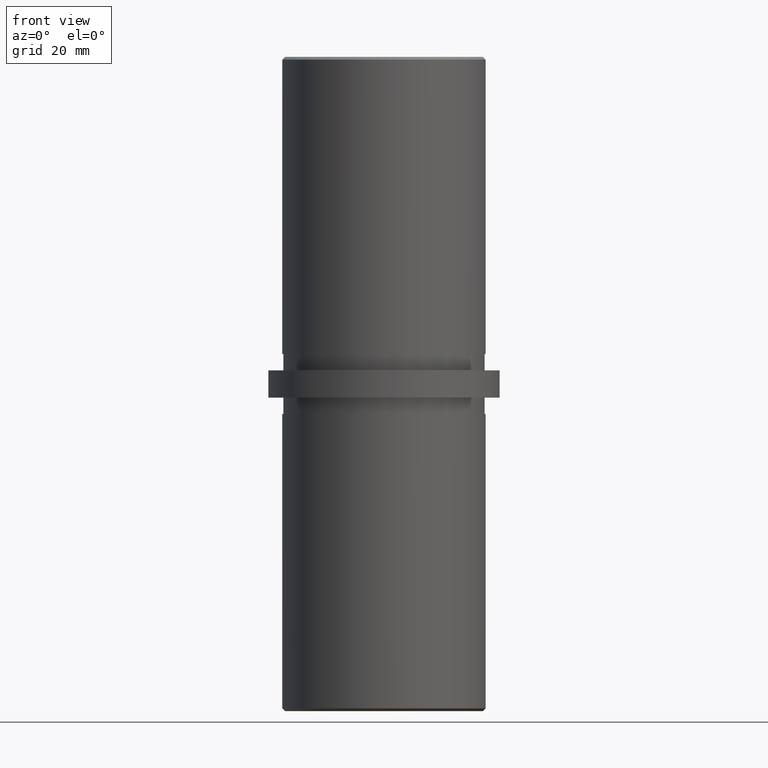
[diagram: clean part render]
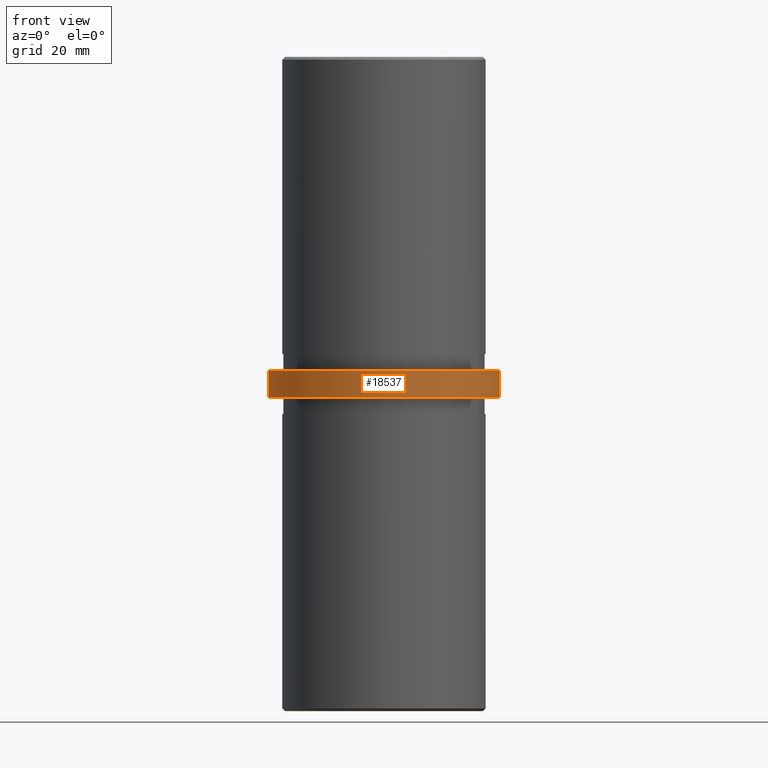
[diagram: same view with one face highlighted and labeled with its STEP entity id]
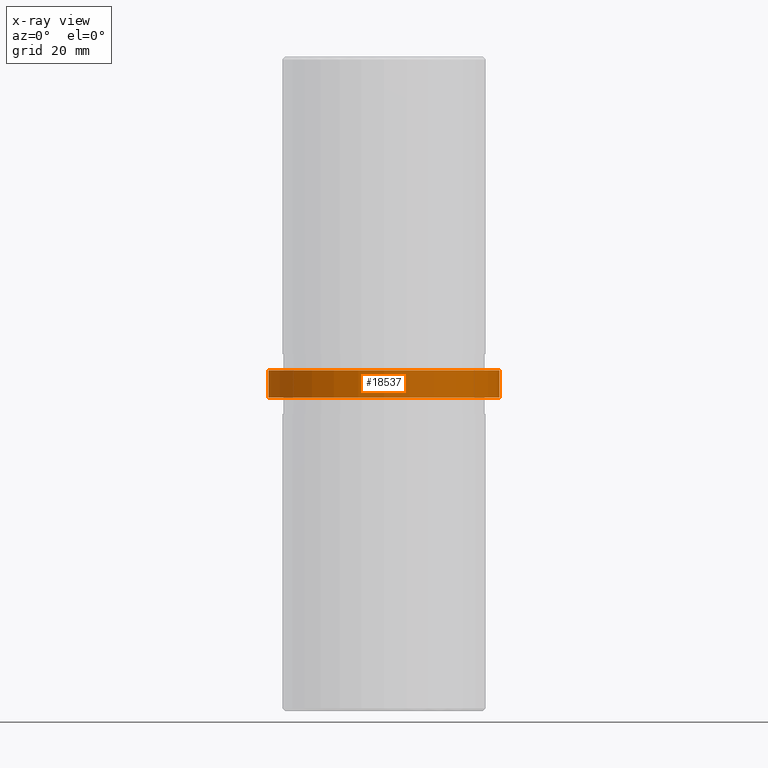
[diagram: x-ray of the same camera — body ghosted, the highlighted face saturated]
A machine part, front view. The second image highlights one B-rep face of the part: STEP entity #18537.
The next image is the same camera in x-ray: the body ghosted, the highlighted face saturated — about 0% of this face is hidden behind the body in this view.
In plain terms, the highlighted cylindrical surface (partial cylindrical patch) has radius 21.2 mm, axis along (-0, -0, -1).
Its self-contained STEP definition (entity closure, byte-faithful):
#322 = CARTESIAN_POINT ( 'NONE',  ( 0.0000000000000000000, 0.0000000000000000000, 2.500000000000000000 ) ) ;
#947 = DIRECTION ( 'NONE',  ( -0.0000000000000000000, -0.0000000000000000000, 1.000000000000000000 ) ) ;
#1158 = CARTESIAN_POINT ( 'NONE',  ( 0.0000000000000000000, 0.0000000000000000000, 2.500000000000000000 ) ) ;
#1464 = VERTEX_POINT ( 'NONE', #15431 ) ;
#2785 = AXIS2_PLACEMENT_3D ( 'NONE', #322, #4028, #13391 ) ;
#3644 = ORIENTED_EDGE ( 'NONE', *, *, #8953, .T. ) ;
#4028 = DIRECTION ( 'NONE',  ( -0.0000000000000000000, -0.0000000000000000000, -1.000000000000000000 ) ) ;
#4075 = EDGE_CURVE ( 'NONE', #14787, #12317, #18422, .T. ) ;
#5021 = DIRECTION ( 'NONE',  ( 1.000000000000000000, 0.0000000000000000000, 0.0000000000000000000 ) ) ;
#5469 = CARTESIAN_POINT ( 'NONE',  ( -21.19999999999999900, 0.0000000000000000000, 2.500000000000000000 ) ) ;
#5686 = FACE_OUTER_BOUND ( 'NONE', #18073, .T. ) ;
#7393 = LINE ( 'NONE', #12438, #11714 ) ;
#8953 = EDGE_CURVE ( 'NONE', #19362, #14787, #9546, .T. ) ;
#9546 = LINE ( 'NONE', #5469, #13279 ) ;
#9813 = EDGE_CURVE ( 'NONE', #1464, #12317, #7393, .T. ) ;
#10758 = ORIENTED_EDGE ( 'NONE', *, *, #9813, .F. ) ;
#10856 = ORIENTED_EDGE ( 'NONE', *, *, #12286, .F. ) ;
#11714 = VECTOR ( 'NONE', #14179, 1000.000000000000000 ) ;
#12286 = EDGE_CURVE ( 'NONE', #19362, #1464, #22807, .T. ) ;
#12317 = VERTEX_POINT ( 'NONE', #12401 ) ;
#12401 = CARTESIAN_POINT ( 'NONE',  ( 21.19999999999999900, 2.596251214192388800E-015, -2.500000000000000000 ) ) ;
#12438 = CARTESIAN_POINT ( 'NONE',  ( 21.19999999999999900, 2.596251214192388800E-015, 2.500000000000000000 ) ) ;
#13279 = VECTOR ( 'NONE', #20388, 1000.000000000000000 ) ;
#13391 = DIRECTION ( 'NONE',  ( -1.000000000000000000, 0.0000000000000000000, 0.0000000000000000000 ) ) ;
#13985 = DIRECTION ( 'NONE',  ( 0.0000000000000000000, 0.0000000000000000000, 1.000000000000000000 ) ) ;
#14179 = DIRECTION ( 'NONE',  ( -0.0000000000000000000, -0.0000000000000000000, -1.000000000000000000 ) ) ;
#14787 = VERTEX_POINT ( 'NONE', #18786 ) ;
#15431 = CARTESIAN_POINT ( 'NONE',  ( 21.19999999999999900, 2.596251214192388800E-015, 2.500000000000000000 ) ) ;
#16590 = CARTESIAN_POINT ( 'NONE',  ( -21.19999999999999900, 0.0000000000000000000, 2.500000000000000000 ) ) ;
#17565 = CARTESIAN_POINT ( 'NONE',  ( 0.0000000000000000000, 0.0000000000000000000, -2.500000000000000000 ) ) ;
#18073 = EDGE_LOOP ( 'NONE', ( #10758, #10856, #3644, #22689 ) ) ;
#18415 = AXIS2_PLACEMENT_3D ( 'NONE', #17565, #947, #19556 ) ;
#18422 = CIRCLE ( 'NONE', #18415, 21.19999999999999900 ) ;
#18537 = ADVANCED_FACE ( 'NONE', ( #5686 ), #19454, .T. ) ;
#18786 = CARTESIAN_POINT ( 'NONE',  ( -21.19999999999999900, 0.0000000000000000000, -2.500000000000000000 ) ) ;
#19362 = VERTEX_POINT ( 'NONE', #16590 ) ;
#19454 = CYLINDRICAL_SURFACE ( 'NONE', #2785, 21.19999999999999900 ) ;
#19556 = DIRECTION ( 'NONE',  ( 1.000000000000000000, 0.0000000000000000000, 0.0000000000000000000 ) ) ;
#20388 = DIRECTION ( 'NONE',  ( -0.0000000000000000000, -0.0000000000000000000, -1.000000000000000000 ) ) ;
#22056 = AXIS2_PLACEMENT_3D ( 'NONE', #1158, #13985, #5021 ) ;
#22689 = ORIENTED_EDGE ( 'NONE', *, *, #4075, .T. ) ;
#22807 = CIRCLE ( 'NONE', #22056, 21.19999999999999900 ) ;